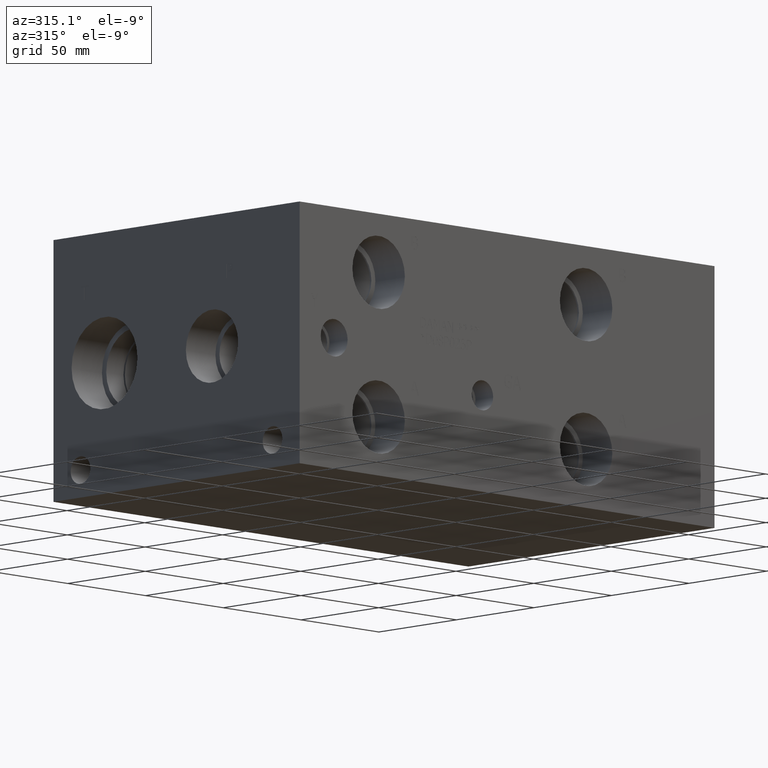
[diagram: clean part render]
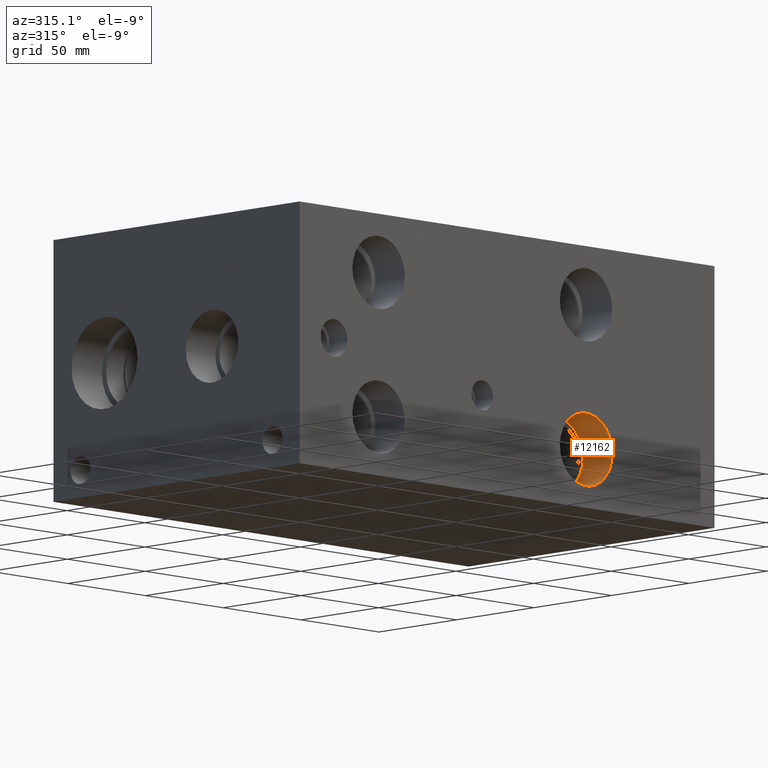
[diagram: same view with one face highlighted and labeled with its STEP entity id]
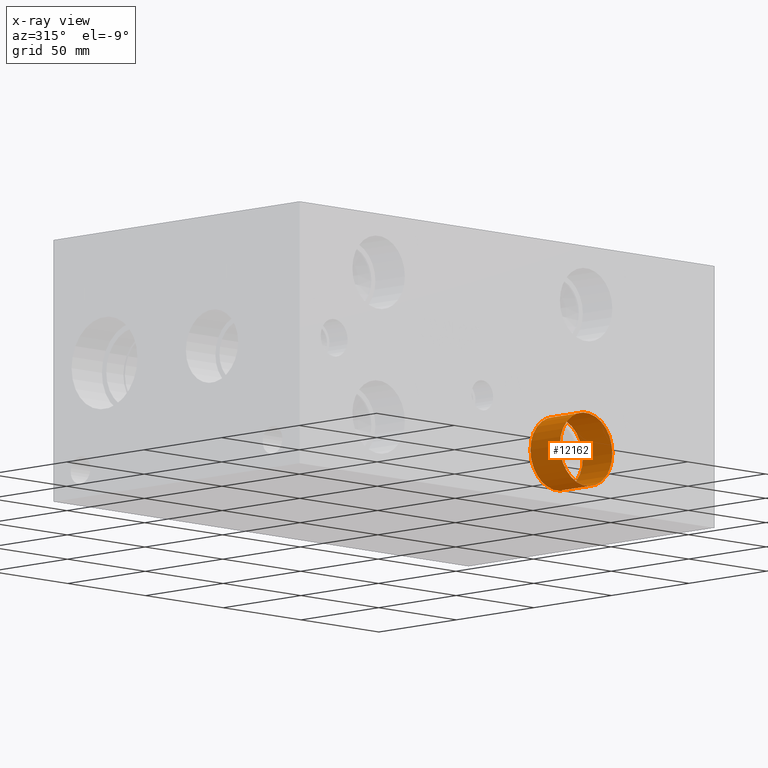
[diagram: x-ray of the same camera — body ghosted, the highlighted face saturated]
A machine part, auxiliary view. The second image highlights one B-rep face of the part: STEP entity #12162.
The next image is the same camera in x-ray: the body ghosted, the highlighted face saturated — about 0% of this face is hidden behind the body in this view.
In plain terms, the highlighted cylindrical surface (bore or boss wall) has radius 16.8529 mm, axis along (0, -1, 0).
Its self-contained STEP definition (entity closure, byte-faithful):
#40=CYLINDRICAL_SURFACE('',#12749,16.8529);
#148=CIRCLE('',#12391,16.8529);
#149=CIRCLE('',#12392,16.8529);
#225=CIRCLE('',#12746,16.8529);
#226=CIRCLE('',#12747,16.8529);
#1501=FACE_OUTER_BOUND('',#2205,.T.);
#2205=EDGE_LOOP('',(#10315,#10316,#10317,#10318,#10319,#10320));
#3383=LINE('',#20592,#4503);
#4503=VECTOR('',#15003,16.8529);
#5148=VERTEX_POINT('',#18547);
#5149=VERTEX_POINT('',#18548);
#5566=VERTEX_POINT('',#20585);
#5567=VERTEX_POINT('',#20586);
#6514=EDGE_CURVE('',#5148,#5149,#148,.T.);
#6515=EDGE_CURVE('',#5149,#5148,#149,.T.);
#7204=EDGE_CURVE('',#5566,#5567,#225,.T.);
#7205=EDGE_CURVE('',#5567,#5566,#226,.T.);
#7207=EDGE_CURVE('',#5149,#5567,#3383,.T.);
#10315=ORIENTED_EDGE('',*,*,#6514,.F.);
#10316=ORIENTED_EDGE('',*,*,#6515,.F.);
#10317=ORIENTED_EDGE('',*,*,#7207,.T.);
#10318=ORIENTED_EDGE('',*,*,#7204,.F.);
#10319=ORIENTED_EDGE('',*,*,#7205,.F.);
#10320=ORIENTED_EDGE('',*,*,#7207,.F.);
#12162=ADVANCED_FACE('',(#1501),#40,.F.);
#12391=AXIS2_PLACEMENT_3D('',#18549,#13756,#13757);
#12392=AXIS2_PLACEMENT_3D('',#18550,#13758,#13759);
#12746=AXIS2_PLACEMENT_3D('',#20587,#14995,#14996);
#12747=AXIS2_PLACEMENT_3D('',#20588,#14997,#14998);
#12749=AXIS2_PLACEMENT_3D('',#20591,#15001,#15002);
#13756=DIRECTION('center_axis',(0.,1.,0.));
#13757=DIRECTION('ref_axis',(1.,0.,0.));
#13758=DIRECTION('center_axis',(0.,1.,0.));
#13759=DIRECTION('ref_axis',(1.,0.,0.));
#14995=DIRECTION('center_axis',(0.,-1.,0.));
#14996=DIRECTION('ref_axis',(1.,0.,0.));
#14997=DIRECTION('center_axis',(0.,-1.,0.));
#14998=DIRECTION('ref_axis',(1.,0.,0.));
#15001=DIRECTION('center_axis',(0.,-1.,0.));
#15002=DIRECTION('ref_axis',(1.,0.,0.));
#15003=DIRECTION('',(0.,1.,0.));
#18547=CARTESIAN_POINT('',(201.0029,0.,26.9748));
#18548=CARTESIAN_POINT('',(167.2971,0.,26.9748));
#18549=CARTESIAN_POINT('Origin',(184.15,0.,26.9748));
#18550=CARTESIAN_POINT('Origin',(184.15,0.,26.9748));
#20585=CARTESIAN_POINT('',(201.0029,18.9992,26.9748));
#20586=CARTESIAN_POINT('',(167.2971,18.9992,26.9748));
#20587=CARTESIAN_POINT('Origin',(184.15,18.9992,26.9748));
#20588=CARTESIAN_POINT('Origin',(184.15,18.9992,26.9748));
#20591=CARTESIAN_POINT('Origin',(184.15,9.4996,26.9748));
#20592=CARTESIAN_POINT('',(167.2971,9.4996,26.9748));